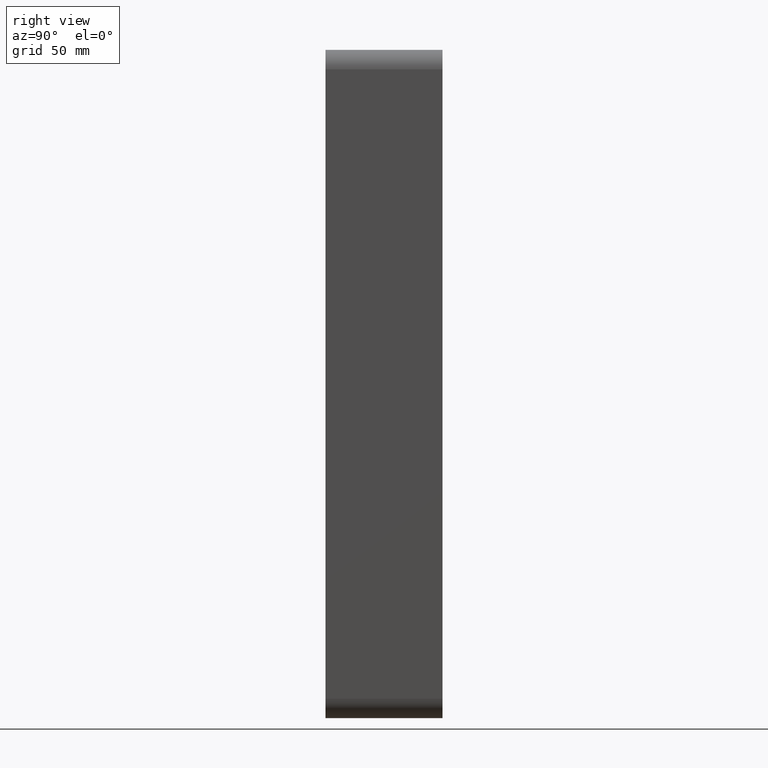
[diagram: clean part render]
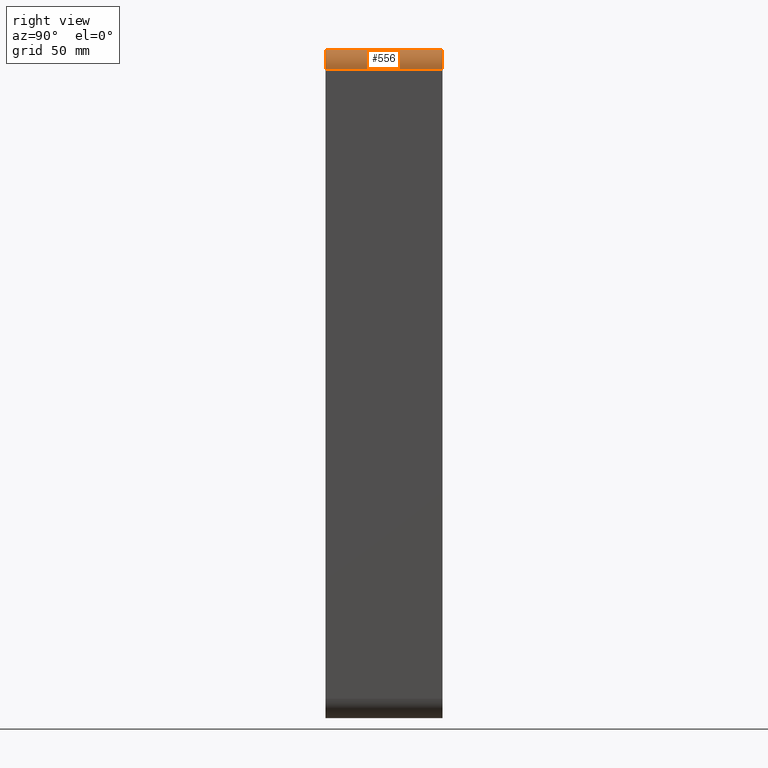
[diagram: same view with one face highlighted and labeled with its STEP entity id]
A machine part, right view. The second image highlights one B-rep face of the part: STEP entity #556.
In plain terms, the highlighted cylindrical surface (edge-blend (fillet) strip) has radius 10 mm, axis along (0, -1, 0).
Its self-contained STEP definition (entity closure, byte-faithful):
#413=CARTESIAN_POINT('',(70.25,-3.0,161.50000000000003));
#414=VERTEX_POINT('',#413);
#421=CARTESIAN_POINT('',(60.249999999999993,-3.0,171.50000000000003));
#422=VERTEX_POINT('',#421);
#423=CARTESIAN_POINT('',(60.249999999999993,-3.0,161.50000000000003));
#424=DIRECTION('',(0.0,1.0,0.0));
#425=DIRECTION('',(0.707106781186547,0.0,0.707106781186547));
#426=AXIS2_PLACEMENT_3D('',#423,#424,#425);
#427=CIRCLE('',#426,9.999999999999998);
#428=EDGE_CURVE('',#422,#414,#427,.T.);
#514=CARTESIAN_POINT('',(70.25,57.0,161.50000000000003));
#515=VERTEX_POINT('',#514);
#522=CARTESIAN_POINT('',(70.25,-3.0,161.50000000000003));
#523=DIRECTION('',(0.0,1.0,0.0));
#524=VECTOR('',#523,60.0);
#525=LINE('',#522,#524);
#526=EDGE_CURVE('',#414,#515,#525,.T.);
#532=CARTESIAN_POINT('',(60.249999999999993,0.0,161.50000000000003));
#533=DIRECTION('',(0.0,-1.0,0.0));
#534=DIRECTION('',(0.707106781186547,0.0,0.707106781186547));
#535=AXIS2_PLACEMENT_3D('',#532,#533,#534);
#536=CYLINDRICAL_SURFACE('',#535,10.0);
#537=ORIENTED_EDGE('',*,*,#428,.T.);
#538=ORIENTED_EDGE('',*,*,#526,.T.);
#539=CARTESIAN_POINT('',(60.249999999999993,57.0,171.50000000000003));
#540=VERTEX_POINT('',#539);
#541=CARTESIAN_POINT('',(60.249999999999993,57.0,161.50000000000003));
#542=DIRECTION('',(0.0,-1.0,0.0));
#543=DIRECTION('',(0.707106781186547,0.0,0.707106781186547));
#544=AXIS2_PLACEMENT_3D('',#541,#542,#543);
#545=CIRCLE('',#544,9.999999999999998);
#546=EDGE_CURVE('',#515,#540,#545,.T.);
#547=ORIENTED_EDGE('',*,*,#546,.T.);
#548=CARTESIAN_POINT('',(60.249999999999993,57.0,171.50000000000003));
#549=DIRECTION('',(0.0,-1.0,0.0));
#550=VECTOR('',#549,60.0);
#551=LINE('',#548,#550);
#552=EDGE_CURVE('',#540,#422,#551,.T.);
#553=ORIENTED_EDGE('',*,*,#552,.T.);
#554=EDGE_LOOP('',(#537,#538,#547,#553));
#555=FACE_OUTER_BOUND('',#554,.T.);
#556=ADVANCED_FACE('',(#555),#536,.T.);